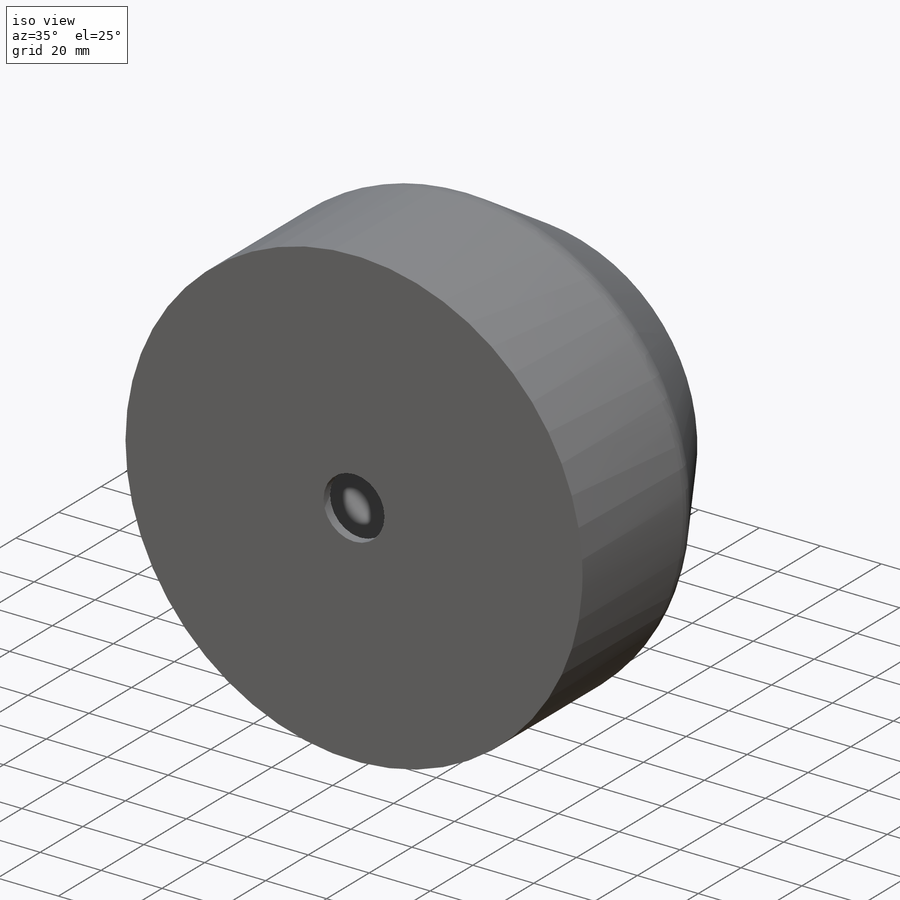
[diagram: iso view]
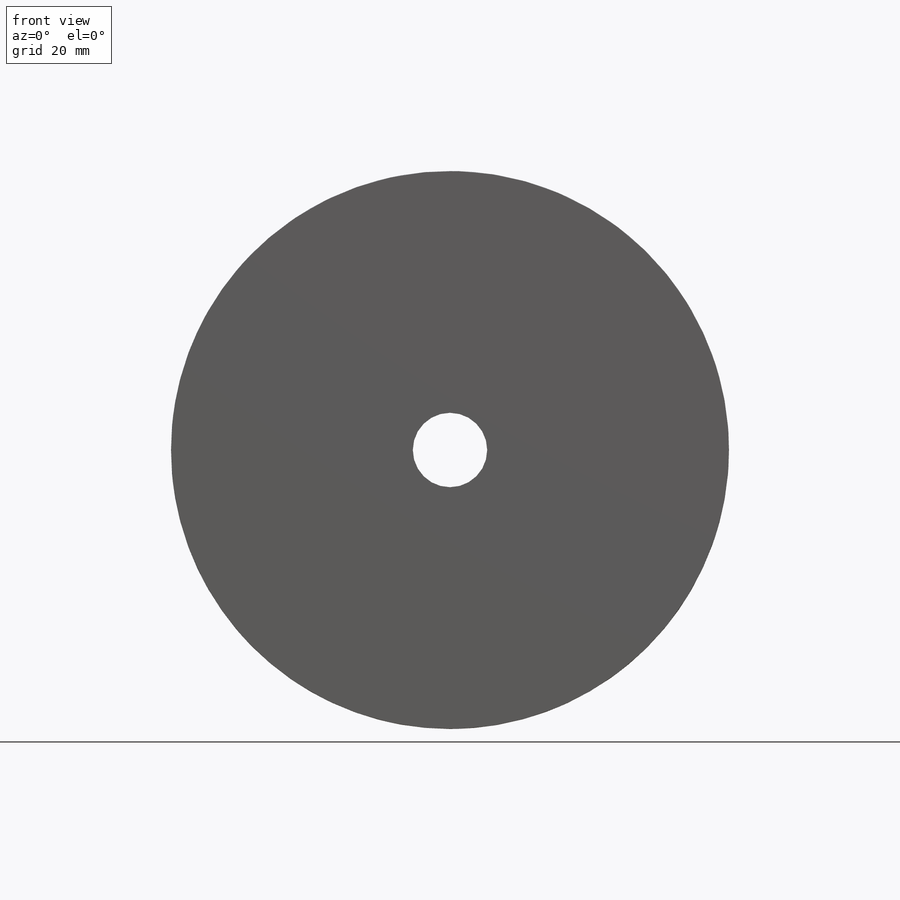
[diagram: front view]
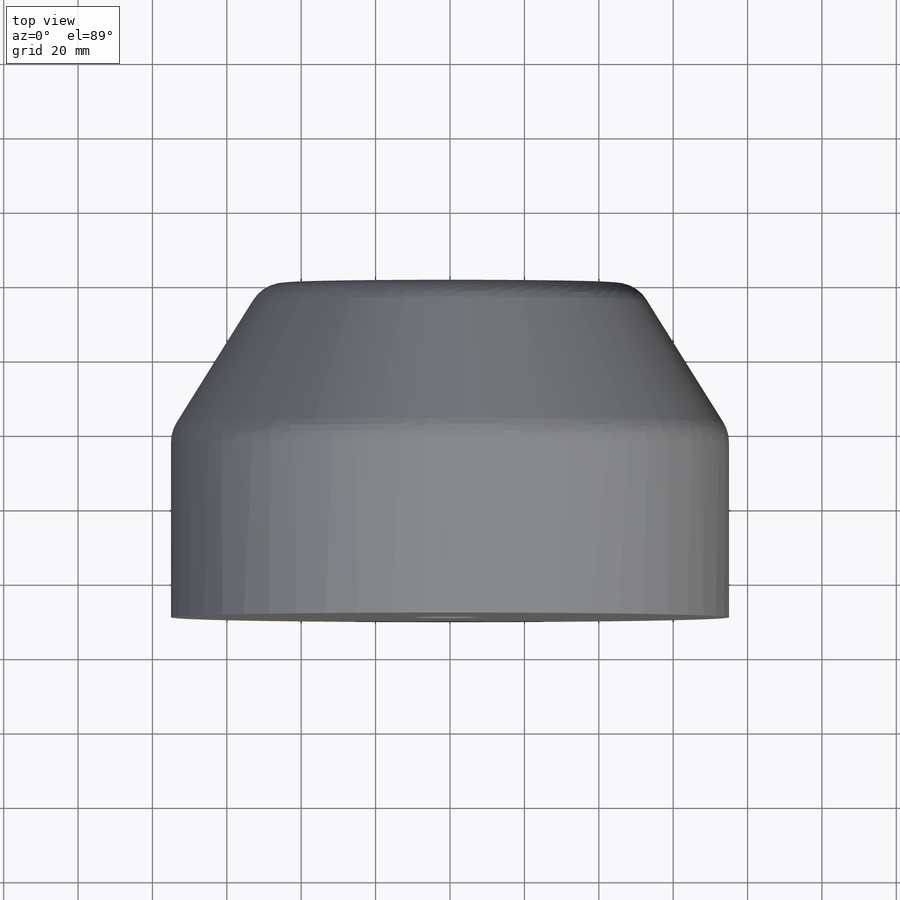
[diagram: top view]
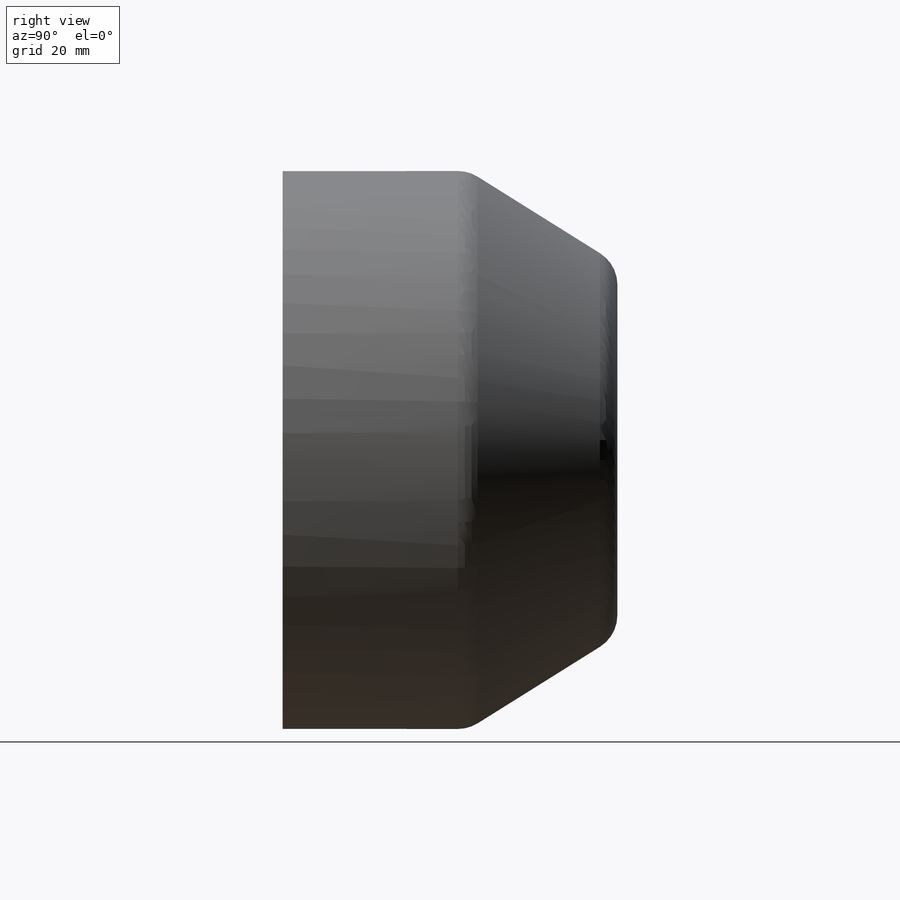
[diagram: right view]
SOLIDWORKS PART (.sldprt)
format: sldprt  version: not decoded by parser v0  size: 193,536 bytes
history: native  units: mm
features: plane x4, sketch x4, material x1, extrude x1, fillet x1, cut_extrude x1, shell x1 (+13 scaffold rows collapsed)
feature tree (26):
  scaffold x13  (default folders/planes/origin — collapsed)
  material  "材质 <未指定>"
  plane  "前视基准面"
  plane  "上视基准面"
  plane  "右视基准面"
  sketch  "草图1"  dims[D1=150.0mm]
  extrude  "凸台-拉伸1"  Depth=50mm
  sketch  "草图2"  dims[D1=0.0mm]
  plane  "基准面1"  Offset=40mm
  sketch  "草图3"  dims[D1=100.0mm]
  fillet  "圆角1"  Radius=10mm
  sketch  "草图4"  dims[D1=20.0mm]
  cut_extrude  "切除-拉伸1"  [1 undecoded]
  shell  "抽壳1"  Thickness=3mm
decode coverage: 7 of 8 modeling features carry decoded parameters
note: 1 parameter value undecoded
note: suppression state not decoded; provenance and decode notes live in map.json
